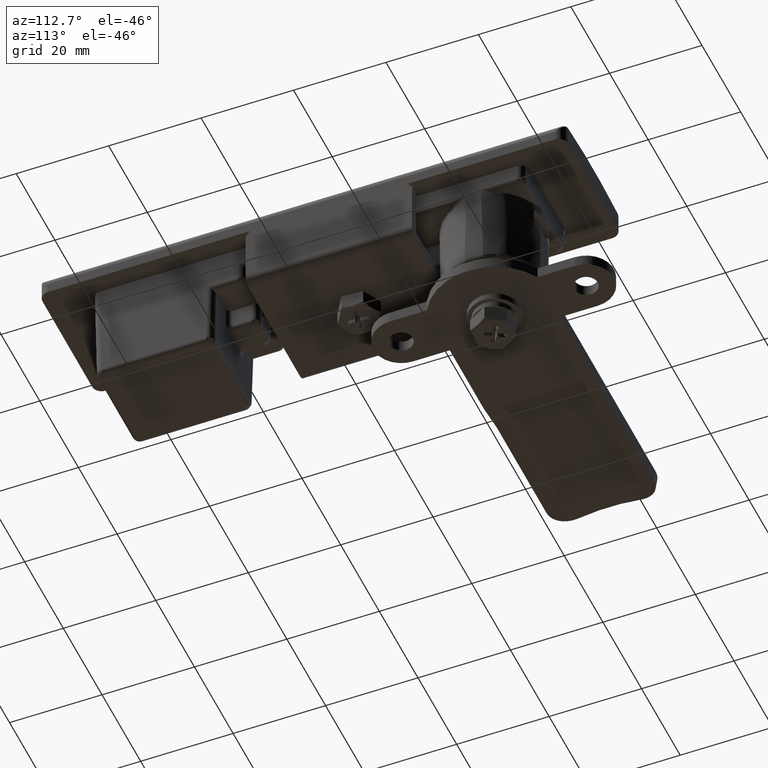
[diagram: clean part render]
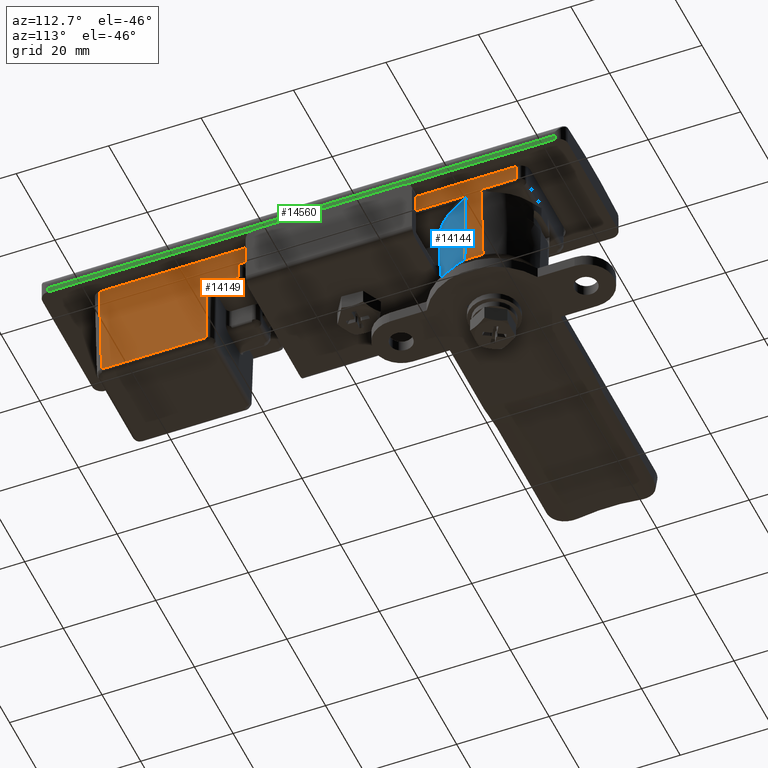
[diagram: same view with three faces highlighted in distinct colors, each labeled with its STEP entity id]
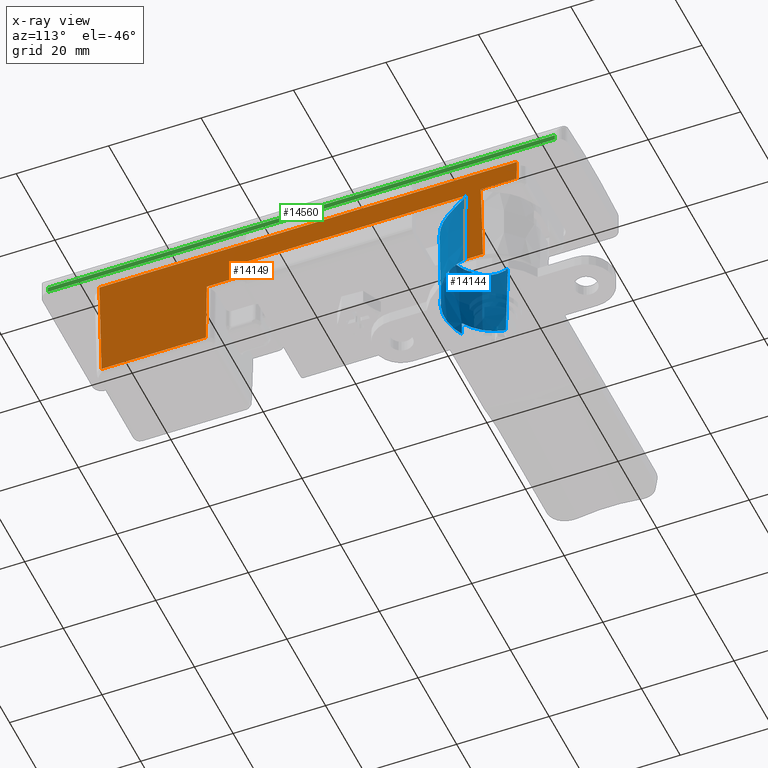
[diagram: x-ray of the same camera — body ghosted, the three highlighted faces saturated]
A machine part, auxiliary view with three faces highlighted in distinct colors.
The next image is the same camera in x-ray (body ghosted, the three faces saturated) — at least one of them is partly hidden behind the body in this view.
Their STEP definitions:

[orange] entity #14149 — the highlighted planar face has unit normal (0.9999, 0, -0.014).
#517=ELLIPSE('',#15081,464.240070481302,4.28746680562079);
#525=ELLIPSE('',#15097,0.154777954485398,0.109455126353893);
#526=ELLIPSE('',#15098,0.15475393743513,0.109421159849967);
#527=ELLIPSE('',#15099,464.240070481302,4.28746680562079);
#528=ELLIPSE('',#15100,0.585635017391936,0.343715317252574);
#688=LINE('',#28674,#1608);
#728=LINE('',#29131,#1648);
#738=LINE('',#29160,#1658);
#741=LINE('',#29369,#1661);
#742=LINE('',#29374,#1662);
#743=LINE('',#29380,#1663);
#744=LINE('',#29381,#1664);
#745=LINE('',#29383,#1665);
#746=LINE('',#29385,#1666);
#747=LINE('',#29386,#1667);
#1608=VECTOR('',#16631,90.3363288865236);
#1648=VECTOR('',#16773,23.2212809893595);
#1658=VECTOR('',#16795,3.70117226637697);
#1661=VECTOR('',#16802,49.109753568521);
#1662=VECTOR('',#16807,3.93851139306799);
#1663=VECTOR('',#16812,7.78124053749399);
#1664=VECTOR('',#16813,4.71767420189047);
#1665=VECTOR('',#16814,22.5943291384858);
#1666=VECTOR('',#16815,14.3045306511327);
#1667=VECTOR('',#16816,6.82249604853421);
#2523=PLANE('',#15096);
#2837=FACE_OUTER_BOUND('',#3717,.T.);
#3717=EDGE_LOOP('',(#9652,#9653,#9654,#9655,#9656,#9657,#9658,#9659,#9660,
#9661,#9662,#9663,#9664,#9665,#9666));
#5837=VERTEX_POINT('',#28671);
#5838=VERTEX_POINT('',#28673);
#5913=VERTEX_POINT('',#28918);
#5914=VERTEX_POINT('',#28920);
#5924=VERTEX_POINT('',#29092);
#5936=VERTEX_POINT('',#29158);
#5937=VERTEX_POINT('',#29159);
#5942=VERTEX_POINT('',#29217);
#5943=VERTEX_POINT('',#29371);
#5944=VERTEX_POINT('',#29373);
#5945=VERTEX_POINT('',#29375);
#5946=VERTEX_POINT('',#29377);
#5947=VERTEX_POINT('',#29379);
#5948=VERTEX_POINT('',#29382);
#5949=VERTEX_POINT('',#29384);
#7267=EDGE_CURVE('',#5838,#5837,#688,.T.);
#7344=EDGE_CURVE('',#5913,#5914,#517,.T.);
#7356=EDGE_CURVE('',#5837,#5924,#728,.T.);
#7370=EDGE_CURVE('',#5936,#5937,#738,.T.);
#7377=EDGE_CURVE('',#5937,#5942,#741,.T.);
#7378=EDGE_CURVE('',#5913,#5943,#525,.T.);
#7379=EDGE_CURVE('',#5943,#5944,#742,.T.);
#7380=EDGE_CURVE('',#5944,#5945,#526,.T.);
#7381=EDGE_CURVE('',#5946,#5945,#527,.T.);
#7382=EDGE_CURVE('',#5946,#5947,#743,.T.);
#7383=EDGE_CURVE('',#5947,#5838,#744,.T.);
#7384=EDGE_CURVE('',#5924,#5948,#745,.T.);
#7385=EDGE_CURVE('',#5948,#5949,#746,.T.);
#7386=EDGE_CURVE('',#5949,#5936,#747,.T.);
#7387=EDGE_CURVE('',#5942,#5914,#528,.T.);
#9652=ORIENTED_EDGE('',*,*,#7344,.F.);
#9653=ORIENTED_EDGE('',*,*,#7378,.T.);
#9654=ORIENTED_EDGE('',*,*,#7379,.T.);
#9655=ORIENTED_EDGE('',*,*,#7380,.T.);
#9656=ORIENTED_EDGE('',*,*,#7381,.F.);
#9657=ORIENTED_EDGE('',*,*,#7382,.T.);
#9658=ORIENTED_EDGE('',*,*,#7383,.T.);
#9659=ORIENTED_EDGE('',*,*,#7267,.T.);
#9660=ORIENTED_EDGE('',*,*,#7356,.T.);
#9661=ORIENTED_EDGE('',*,*,#7384,.T.);
#9662=ORIENTED_EDGE('',*,*,#7385,.T.);
#9663=ORIENTED_EDGE('',*,*,#7386,.T.);
#9664=ORIENTED_EDGE('',*,*,#7370,.T.);
#9665=ORIENTED_EDGE('',*,*,#7377,.T.);
#9666=ORIENTED_EDGE('',*,*,#7387,.T.);
#14149=ADVANCED_FACE('',(#2837),#2523,.T.);
#15081=AXIS2_PLACEMENT_3D('',#28921,#16758,#16759);
#15096=AXIS2_PLACEMENT_3D('',#29370,#16803,#16804);
#15097=AXIS2_PLACEMENT_3D('',#29372,#16805,#16806);
#15098=AXIS2_PLACEMENT_3D('',#29376,#16808,#16809);
#15099=AXIS2_PLACEMENT_3D('',#29378,#16810,#16811);
#15100=AXIS2_PLACEMENT_3D('',#29387,#16817,#16818);
#16631=DIRECTION('',(-1.,3.1255333109255E-18,-2.23835287222814E-16));
#16758=DIRECTION('center_axis',(0.,-0.999902524009304,-0.0139621803391464));
#16759=DIRECTION('ref_axis',(0.,0.0139621803391464,-0.999902524009304));
#16773=DIRECTION('',(0.0139608196270565,-0.0139608196270591,0.999805076517759));
#16795=DIRECTION('',(0.0209403793954215,0.0139591187990151,-0.999683271598125));
#16802=DIRECTION('',(1.,-5.16309677165247E-18,3.6975553733574E-16));
#16803=DIRECTION('center_axis',(0.,0.999902524009304,0.0139621803391464));
#16804=DIRECTION('ref_axis',(0.,0.0139621803391492,-0.999902524009304));
#16805=DIRECTION('center_axis',(1.48984843499968E-9,0.999902524008771,0.0139621803773251));
#16806=DIRECTION('ref_axis',(-0.0176406853990293,-0.0139600077101507,0.999746930179525));
#16807=DIRECTION('',(1.,0.,0.));
#16808=DIRECTION('center_axis',(-1.54396927252276E-9,0.99990252400876,0.0139621803781067));
#16809=DIRECTION('ref_axis',(0.017637351709531,-0.0139600085311287,0.999746988985956));
#16810=DIRECTION('center_axis',(0.,-0.999902524009304,-0.0139621803391464));
#16811=DIRECTION('ref_axis',(0.,0.0139621803391464,-0.999902524009304));
#16812=DIRECTION('',(1.,0.,0.));
#16813=DIRECTION('',(0.0139608196270585,0.0139608196270591,-0.999805076517759));
#16814=DIRECTION('',(1.,0.,0.));
#16815=DIRECTION('',(0.0209403793954211,0.0139591187990151,-0.999683271598125));
#16816=DIRECTION('',(1.,0.,0.));
#16817=DIRECTION('center_axis',(1.75792283152934E-13,-0.999902524009309,
-0.0139621803387829));
#16818=DIRECTION('ref_axis',(0.63353418551725,0.0108027441613151,-0.773639280607945));
#28671=CARTESIAN_POINT('',(69.1068355567384,-89.0569817707248,-3.55));
#28673=CARTESIAN_POINT('',(159.443164443262,-89.0569817707248,-3.54999999999998));
#28674=CARTESIAN_POINT('',(186.4,-89.0569817707248,-3.54999999999997));
#28918=CARTESIAN_POINT('',(148.030779024927,-89.3811114001757,19.6625661409394));
#28920=CARTESIAN_POINT('',(148.388174033898,-89.1324636764398,1.85532475195617));
#28921=CARTESIAN_POINT('Origin',(150.,-95.1387855322505,431.998802834796));
#29092=CARTESIAN_POINT('',(69.4310236721401,-89.3811698861266,19.666754616407));
#29131=CARTESIAN_POINT('',(69.1296965205083,-89.0798427344947,-1.91281047662134));
#29158=CARTESIAN_POINT('',(99.1473911580683,-89.1814912434032,5.36675461640699));
#29159=CARTESIAN_POINT('',(99.2248951095341,-89.1298261400413,1.66675461640701));
#29160=CARTESIAN_POINT('',(99.3723488627939,-89.0315316239656,-5.37261404471702));
#29217=CARTESIAN_POINT('',(148.334648678062,-89.1298245436953,1.6667546383668));
#29369=CARTESIAN_POINT('',(186.4,-89.1298261400413,1.66675461640702));
#29370=CARTESIAN_POINT('Origin',(186.4,-89.0569817707248,-3.54999999999999));
#29371=CARTESIAN_POINT('',(148.030744303466,-89.3811698861266,19.666754616407));
#29372=CARTESIAN_POINT('Origin',(148.140216272545,-89.3811390251963,19.6645444970428));
#29373=CARTESIAN_POINT('',(151.969255696534,-89.3811698861266,19.666754616407));
#29374=CARTESIAN_POINT('',(186.4,-89.3811698861266,19.666754616407));
#29375=CARTESIAN_POINT('',(151.969220975073,-89.3811114001757,19.6625661409394));
#29376=CARTESIAN_POINT('Origin',(151.85981769511,-89.3811390219307,19.6645442627598));
#29377=CARTESIAN_POINT('',(151.596061307176,-89.1228443693167,1.16675461640699));
#29378=CARTESIAN_POINT('Origin',(150.,-95.1387855322505,431.998802834796));
#29379=CARTESIAN_POINT('',(159.37730184467,-89.1228443693167,1.16675461640698));
#29380=CARTESIAN_POINT('',(186.4,-89.1228443693167,1.16675461640698));
#29381=CARTESIAN_POINT('',(159.448418451404,-89.0517277625826,-3.92626616151436));
#29382=CARTESIAN_POINT('',(92.0253528106259,-89.3811698861266,19.666754616407));
#29383=CARTESIAN_POINT('',(186.4,-89.3811698861266,19.666754616407));
#29384=CARTESIAN_POINT('',(92.3248951095341,-89.1814912434032,5.36675461640699));
#29385=CARTESIAN_POINT('',(92.5528444752921,-89.0295373453056,-5.51543445078625));
#29386=CARTESIAN_POINT('',(186.4,-89.1814912434032,5.36675461640699));
#29387=CARTESIAN_POINT('Origin',(147.931794149462,-89.1356963255861,2.08714836581689));

[blue] entity #14144 — the highlighted conical surface has half-angle 0.6 deg.
#390=CONICAL_SURFACE('',#15076,10.7999364046344,0.0104719755119659);
#516=ELLIPSE('',#15077,464.240070481226,4.28746680562009);
#517=ELLIPSE('',#15081,464.240070481302,4.28746680562079);
#518=ELLIPSE('',#15083,650.267104092456,7.26775512542726);
#519=ELLIPSE('',#15085,655.734211315511,7.37169712600853);
#725=LINE('',#28913,#1645);
#726=LINE('',#28917,#1646);
#1645=VECTOR('',#16752,3.09074890876522);
#1646=VECTOR('',#16755,3.09074882597285);
#2832=FACE_OUTER_BOUND('',#3711,.T.);
#3711=EDGE_LOOP('',(#9607,#9608,#9609,#9610,#9611,#9612,#9613,#9614,#9615,
#9616,#9617,#9618,#9619,#9620,#9621,#9622));
#4713=B_SPLINE_CURVE_WITH_KNOTS('',3,(#28923,#28924,#28925,#28926,#28927,
#28928,#28929,#28930,#28931,#28932,#28933,#28934,#28935,#28936,#28937,#28938,
#28939,#28940,#28941,#28942,#28943,#28944,#28945,#28946,#28947,#28948,#28949,
#28950,#28951,#28952,#28953,#28954,#28955,#28956,#28957,#28958,#28959,#28960,
#28961,#28962,#28963,#28964,#28965,#28966,#28967,#28968,#28969,#28970,#28971,
#28972,#28973,#28974,#28975,#28976,#28977,#28978,#28979,#28980,#28981,#28982,
#28983,#28984,#28985,#28986,#28987,#28988),.UNSPECIFIED.,.F.,.F.,(4,2,2,
2,2,2,2,2,2,2,2,2,2,2,2,2,2,2,2,2,2,2,2,2,2,2,2,2,2,2,2,2,4),(2.95379742203875E-14,
0.0169544693864773,0.0329217426797109,0.0473913676340086,0.072301814469264,
0.0950801212772199,0.116773590726306,0.137142541527361,0.14703315497503,
0.180415848255328,0.211433726895174,0.239914399162714,0.249999999999997,
0.276128192334897,0.290448670101285,0.335921679475225,0.364947674959515,
0.391226997077889,0.433078876886877,0.437500000000001,0.450009627924577,
0.462349340696292,0.47508343459444,0.486901769339524,0.500000000000007,
0.557656108815905,0.618968377705152,0.682873662381024,0.74967621546989,
0.82167223130858,0.897282459425005,0.979088838413367,1.),.UNSPECIFIED.);
#4714=B_SPLINE_CURVE_WITH_KNOTS('',3,(#28994,#28995,#28996,#28997,#28998,
#28999,#29000,#29001,#29002,#29003),.UNSPECIFIED.,.F.,.F.,(4,2,2,2,4),(-0.0047308052367742,
0.,0.0484607747779677,0.0759424919550525,0.101605138792956),
 .UNSPECIFIED.);
#4715=B_SPLINE_CURVE_WITH_KNOTS('',3,(#29007,#29008,#29009,#29010,#29011,
#29012,#29013,#29014,#29015,#29016),.UNSPECIFIED.,.F.,.F.,(4,2,2,2,4),(0.,
0.027517666806284,0.056985895133302,0.108949648578472,0.114022419289789),
 .UNSPECIFIED.);
#4716=B_SPLINE_CURVE_WITH_KNOTS('',3,(#29021,#29022,#29023,#29024,#29025,
#29026,#29027,#29028,#29029,#29030,#29031,#29032,#29033,#29034,#29035,#29036,
#29037,#29038,#29039,#29040,#29041,#29042,#29043,#29044,#29045,#29046,#29047,
#29048,#29049,#29050,#29051,#29052,#29053,#29054,#29055,#29056,#29057,#29058,
#29059,#29060,#29061,#29062,#29063,#29064,#29065,#29066,#29067,#29068,#29069,
#29070,#29071,#29072,#29073,#29074,#29075,#29076,#29077,#29078,#29079,#29080,
#29081,#29082,#29083,#29084,#29085,#29086,#29087,#29088),.UNSPECIFIED.,
 .F.,.F.,(4,2,2,2,2,2,2,2,2,2,2,2,2,2,2,2,2,2,2,2,2,2,2,2,2,2,2,2,2,2,2,
2,2,4),(0.,0.0918029845604541,0.170901492280224,0.245935304308858,0.249999999999993,
0.314653977560984,0.37499999999999,0.432467982034807,0.437499999999994,
0.450736958105948,0.464375225046676,0.47760599796234,0.489695856585386,
0.499999999999998,0.510894643591763,0.550401529673819,0.59257662468468,
0.636354183158157,0.682552939686665,0.710646052959975,0.736894995308005,
0.764239713566658,0.793526935464773,0.825369048260799,0.853413240829023,
0.873320388866884,0.894501987681184,0.916554560214781,0.940251588849618,
0.952298749463537,0.958933386126638,0.974983313091459,0.993115124816357,
0.999999999999839),.UNSPECIFIED.);
#5123=CIRCLE('',#15078,10.7999364046344);
#5124=CIRCLE('',#15079,10.7675707916833);
#5125=CIRCLE('',#15080,10.7999364046344);
#5126=CIRCLE('',#15082,10.9677134663423);
#5127=CIRCLE('',#15084,10.9131694716459);
#5128=CIRCLE('',#15086,10.9677134663423);
#5907=VERTEX_POINT('',#28907);
#5908=VERTEX_POINT('',#28908);
#5909=VERTEX_POINT('',#28910);
#5910=VERTEX_POINT('',#28912);
#5911=VERTEX_POINT('',#28914);
#5912=VERTEX_POINT('',#28916);
#5913=VERTEX_POINT('',#28918);
#5914=VERTEX_POINT('',#28920);
#5915=VERTEX_POINT('',#28922);
#5916=VERTEX_POINT('',#28989);
#5917=VERTEX_POINT('',#28991);
#5918=VERTEX_POINT('',#28993);
#5919=VERTEX_POINT('',#29004);
#5920=VERTEX_POINT('',#29006);
#5921=VERTEX_POINT('',#29017);
#5922=VERTEX_POINT('',#29019);
#7338=EDGE_CURVE('',#5907,#5908,#516,.T.);
#7339=EDGE_CURVE('',#5907,#5909,#5123,.T.);
#7340=EDGE_CURVE('',#5910,#5909,#725,.T.);
#7341=EDGE_CURVE('',#5910,#5911,#5124,.T.);
#7342=EDGE_CURVE('',#5911,#5912,#726,.T.);
#7343=EDGE_CURVE('',#5912,#5913,#5125,.T.);
#7344=EDGE_CURVE('',#5913,#5914,#517,.T.);
#7345=EDGE_CURVE('',#5914,#5915,#4713,.T.);
#7346=EDGE_CURVE('',#5915,#5916,#5126,.T.);
#7347=EDGE_CURVE('',#5916,#5917,#518,.T.);
#7348=EDGE_CURVE('',#5917,#5918,#4714,.T.);
#7349=EDGE_CURVE('',#5919,#5918,#5127,.T.);
#7350=EDGE_CURVE('',#5919,#5920,#4715,.T.);
#7351=EDGE_CURVE('',#5920,#5921,#519,.T.);
#7352=EDGE_CURVE('',#5921,#5922,#5128,.T.);
#7353=EDGE_CURVE('',#5922,#5908,#4716,.T.);
#9607=ORIENTED_EDGE('',*,*,#7338,.F.);
#9608=ORIENTED_EDGE('',*,*,#7339,.T.);
#9609=ORIENTED_EDGE('',*,*,#7340,.F.);
#9610=ORIENTED_EDGE('',*,*,#7341,.T.);
#9611=ORIENTED_EDGE('',*,*,#7342,.T.);
#9612=ORIENTED_EDGE('',*,*,#7343,.T.);
#9613=ORIENTED_EDGE('',*,*,#7344,.T.);
#9614=ORIENTED_EDGE('',*,*,#7345,.T.);
#9615=ORIENTED_EDGE('',*,*,#7346,.T.);
#9616=ORIENTED_EDGE('',*,*,#7347,.T.);
#9617=ORIENTED_EDGE('',*,*,#7348,.T.);
#9618=ORIENTED_EDGE('',*,*,#7349,.F.);
#9619=ORIENTED_EDGE('',*,*,#7350,.T.);
#9620=ORIENTED_EDGE('',*,*,#7351,.T.);
#9621=ORIENTED_EDGE('',*,*,#7352,.T.);
#9622=ORIENTED_EDGE('',*,*,#7353,.T.);
#14144=ADVANCED_FACE('',(#2832),#390,.T.);
#15076=AXIS2_PLACEMENT_3D('',#28906,#16746,#16747);
#15077=AXIS2_PLACEMENT_3D('',#28909,#16748,#16749);
#15078=AXIS2_PLACEMENT_3D('',#28911,#16750,#16751);
#15079=AXIS2_PLACEMENT_3D('',#28915,#16753,#16754);
#15080=AXIS2_PLACEMENT_3D('',#28919,#16756,#16757);
#15081=AXIS2_PLACEMENT_3D('',#28921,#16758,#16759);
#15082=AXIS2_PLACEMENT_3D('',#28990,#16760,#16761);
#15083=AXIS2_PLACEMENT_3D('',#28992,#16762,#16763);
#15084=AXIS2_PLACEMENT_3D('',#29005,#16764,#16765);
#15085=AXIS2_PLACEMENT_3D('',#29018,#16766,#16767);
#15086=AXIS2_PLACEMENT_3D('',#29020,#16768,#16769);
#16746=DIRECTION('center_axis',(0.,0.,-1.));
#16747=DIRECTION('ref_axis',(-1.,-6.78380282766567E-15,0.));
#16748=DIRECTION('center_axis',(0.,-0.999902524009304,0.0139621803391458));
#16749=DIRECTION('ref_axis',(0.,-0.0139621803391458,-0.999902524009304));
#16750=DIRECTION('center_axis',(0.,0.,-1.));
#16751=DIRECTION('ref_axis',(1.,0.,0.));
#16752=DIRECTION('',(-0.00821126718839317,-0.00670819689672159,-0.999943786012772));
#16753=DIRECTION('center_axis',(0.,0.,-1.));
#16754=DIRECTION('ref_axis',(-1.,0.,0.));
#16755=DIRECTION('',(-0.00821126718839891,0.00670819689683078,-0.999943786012771));
#16756=DIRECTION('center_axis',(0.,0.,-1.));
#16757=DIRECTION('ref_axis',(1.,0.,0.));
#16758=DIRECTION('center_axis',(0.,-0.999902524009304,-0.0139621803391464));
#16759=DIRECTION('ref_axis',(0.,0.0139621803391464,-0.999902524009304));
#16760=DIRECTION('center_axis',(0.,0.,1.));
#16761=DIRECTION('ref_axis',(-1.,0.,0.));
#16762=DIRECTION('center_axis',(-0.0916197734645488,0.995648672652722,0.0170158089780552));
#16763=DIRECTION('ref_axis',(0.00355311674554424,-0.0167607069049695,0.999853216259986));
#16764=DIRECTION('center_axis',(0.,0.,-1.));
#16765=DIRECTION('ref_axis',(-1.,0.,0.));
#16766=DIRECTION('center_axis',(-0.0916198770910891,-0.995648663106424,
0.0170158095958866));
#16767=DIRECTION('ref_axis',(-0.00349998835714254,-0.0167655980069787,-0.999853321645214));
#16768=DIRECTION('center_axis',(0.,0.,1.));
#16769=DIRECTION('ref_axis',(-1.,0.,0.));
#28906=CARTESIAN_POINT('Origin',(150.,-100.,19.6625661409395));
#28907=CARTESIAN_POINT('',(148.030779024927,-110.618888599825,19.6625661409395));
#28908=CARTESIAN_POINT('',(148.388174690729,-110.867527466459,1.85532464323361));
#28909=CARTESIAN_POINT('Origin',(150.,-104.861214467751,431.998802834719));
#28910=CARTESIAN_POINT('',(140.66921026733,-105.438289184752,19.6625663701614));
#28911=CARTESIAN_POINT('Origin',(150.,-100.,19.6625661409397));
#28912=CARTESIAN_POINT('',(140.694589121241,-105.417555641744,22.7531415352402));
#28913=CARTESIAN_POINT('',(140.694589121241,-105.417555641744,22.7531415352444));
#28914=CARTESIAN_POINT('',(140.694589121241,-94.5824443582566,22.7531415352402));
#28915=CARTESIAN_POINT('Origin',(150.,-100.,22.7531415352349));
#28916=CARTESIAN_POINT('',(140.66921016061,-94.5617110000682,19.6625664525949));
#28917=CARTESIAN_POINT('',(140.694589121241,-94.5824443582566,22.7531415352444));
#28918=CARTESIAN_POINT('',(148.030779024927,-89.3811114001757,19.6625661409394));
#28919=CARTESIAN_POINT('Origin',(150.,-100.,19.6625661409397));
#28920=CARTESIAN_POINT('',(148.388174033898,-89.1324636764398,1.85532475195617));
#28921=CARTESIAN_POINT('Origin',(150.,-95.1387855322505,431.998802834796));
#28922=CARTESIAN_POINT('',(143.750348563005,-90.9870872856859,3.64162257270702));
#28923=CARTESIAN_POINT('Ctrl Pts',(148.388174690728,-89.1324725335413,1.85532464323337));
#28924=CARTESIAN_POINT('Ctrl Pts',(148.380136825916,-89.1338055051391,1.86852623694646));
#28925=CARTESIAN_POINT('Ctrl Pts',(148.371277239575,-89.1352687509672,1.88177692968449));
#28926=CARTESIAN_POINT('Ctrl Pts',(148.352610522289,-89.138353104825,1.90748764074911));
#28927=CARTESIAN_POINT('Ctrl Pts',(148.342888447379,-89.1399600811621,1.91994874498007));
#28928=CARTESIAN_POINT('Ctrl Pts',(148.323273895547,-89.1432167983206,1.94357803953029));
#28929=CARTESIAN_POINT('Ctrl Pts',(148.31348311685,-89.1448483698941,1.95475781176576));
#28930=CARTESIAN_POINT('Ctrl Pts',(148.285871727522,-89.1494843154384,1.98490997461892));
#28931=CARTESIAN_POINT('Ctrl Pts',(148.267096565305,-89.1526688106536,2.00403399927173));
#28932=CARTESIAN_POINT('Ctrl Pts',(148.228562395655,-89.1592944252076,2.04069043472831));
#28933=CARTESIAN_POINT('Ctrl Pts',(148.209024956567,-89.1626902881219,2.05821876461086));
#28934=CARTESIAN_POINT('Ctrl Pts',(148.168671102003,-89.169804682634,2.09248915797361));
#28935=CARTESIAN_POINT('Ctrl Pts',(148.147959592972,-89.1735001837055,2.1092286130544));
#28936=CARTESIAN_POINT('Ctrl Pts',(148.105880225336,-89.1811260089394,2.14179275486395));
#28937=CARTESIAN_POINT('Ctrl Pts',(148.084629500287,-89.1850282436519,2.15761074076627));
#28938=CARTESIAN_POINT('Ctrl Pts',(148.051859540497,-89.1911479722402,2.18126510474036));
#28939=CARTESIAN_POINT('Ctrl Pts',(148.040958418049,-89.1931994338812,2.18902190155689));
#28940=CARTESIAN_POINT('Ctrl Pts',(147.992480942217,-89.2024016552203,2.22311000286087));
#28941=CARTESIAN_POINT('Ctrl Pts',(147.952929899085,-89.2101046041183,2.24977499396975));
#28942=CARTESIAN_POINT('Ctrl Pts',(147.872277492116,-89.226301669897,2.30182464910068));
#28943=CARTESIAN_POINT('Ctrl Pts',(147.831484058722,-89.2347011751152,2.32716565221967));
#28944=CARTESIAN_POINT('Ctrl Pts',(147.749397714391,-89.2521095739589,2.37627547150642));
#28945=CARTESIAN_POINT('Ctrl Pts',(147.708418444116,-89.2610124976461,2.40000305712426));
#28946=CARTESIAN_POINT('Ctrl Pts',(147.650630002967,-89.2739268340649,2.43246383750853));
#28947=CARTESIAN_POINT('Ctrl Pts',(147.635305076743,-89.2773836654236,2.44098373982381));
#28948=CARTESIAN_POINT('Ctrl Pts',(147.579518017027,-89.2900922381666,2.471695137995));
#28949=CARTESIAN_POINT('Ctrl Pts',(147.537870797825,-89.2998090481852,2.49405899715322));
#28950=CARTESIAN_POINT('Ctrl Pts',(147.471313993749,-89.3157725550752,2.52908375542555));
#28951=CARTESIAN_POINT('Ctrl Pts',(147.447346445466,-89.321603038104,2.54156290399656));
#28952=CARTESIAN_POINT('Ctrl Pts',(147.345640230654,-89.3467271256512,2.5940573510049));
#28953=CARTESIAN_POINT('Ctrl Pts',(147.264330956728,-89.367689350901,2.63475559197689));
#28954=CARTESIAN_POINT('Ctrl Pts',(147.124474702376,-89.4056144865629,2.70232828806445));
#28955=CARTESIAN_POINT('Ctrl Pts',(147.068331893903,-89.4212825616825,2.72887856559759));
#28956=CARTESIAN_POINT('Ctrl Pts',(146.958171107367,-89.4530190810512,2.77978147381072));
#28957=CARTESIAN_POINT('Ctrl Pts',(146.904449425929,-89.4689112145358,2.80410649361887));
#28958=CARTESIAN_POINT('Ctrl Pts',(146.761684389666,-89.5123832264771,2.86737333350743));
#28959=CARTESIAN_POINT('Ctrl Pts',(146.67056310975,-89.5413099205307,2.90643782060134));
#28960=CARTESIAN_POINT('Ctrl Pts',(146.566106575427,-89.5760831818867,2.94965472899574));
#28961=CARTESIAN_POINT('Ctrl Pts',(146.556088927354,-89.5794337634673,2.95378415455221));
#28962=CARTESIAN_POINT('Ctrl Pts',(146.517583279878,-89.5923742604397,2.96959827313968));
#28963=CARTESIAN_POINT('Ctrl Pts',(146.487161341616,-89.6027290984615,2.98196776328231));
#28964=CARTESIAN_POINT('Ctrl Pts',(146.424818238223,-89.6242780538605,3.0070166011005));
#28965=CARTESIAN_POINT('Ctrl Pts',(146.392923135616,-89.6354592014,3.0196893641886));
#28966=CARTESIAN_POINT('Ctrl Pts',(146.328176469924,-89.6584967867193,3.04511986604732));
#28967=CARTESIAN_POINT('Ctrl Pts',(146.295327023361,-89.67036363019,3.05786743277429));
#28968=CARTESIAN_POINT('Ctrl Pts',(146.234101110622,-89.6927958449807,3.08136666212225));
#28969=CARTESIAN_POINT('Ctrl Pts',(146.205572874866,-89.703392685886,3.09219673037661));
#28970=CARTESIAN_POINT('Ctrl Pts',(146.149199033434,-89.7245709168582,3.11340675333529));
#28971=CARTESIAN_POINT('Ctrl Pts',(146.121751464119,-89.7350338454053,3.12361687703036));
#28972=CARTESIAN_POINT('Ctrl Pts',(145.991537112454,-89.7851504212018,3.1716462661213));
#28973=CARTESIAN_POINT('Ctrl Pts',(145.887218951221,-89.8272181633667,3.20867006437138));
#28974=CARTESIAN_POINT('Ctrl Pts',(145.675757326549,-89.9161867219491,3.28049404019822));
#28975=CARTESIAN_POINT('Ctrl Pts',(145.568854147218,-89.9632247030841,3.31500451094807));
#28976=CARTESIAN_POINT('Ctrl Pts',(145.354824820332,-90.0613222361537,3.38021559552603));
#28977=CARTESIAN_POINT('Ctrl Pts',(145.247880287232,-90.1124676883973,3.41069373123431));
#28978=CARTESIAN_POINT('Ctrl Pts',(145.033826260856,-90.2189000979801,3.46721717422847));
#28979=CARTESIAN_POINT('Ctrl Pts',(144.926928921813,-90.2742696586738,3.49299926176315));
#28980=CARTESIAN_POINT('Ctrl Pts',(144.70997531464,-90.3909476679878,3.54010527566464));
#28981=CARTESIAN_POINT('Ctrl Pts',(144.600319432986,-90.4523829938457,3.56092709370989));
#28982=CARTESIAN_POINT('Ctrl Pts',(144.381291371037,-90.5798028530214,3.59628470811943));
#28983=CARTESIAN_POINT('Ctrl Pts',(144.272209446942,-90.6458609444439,3.61045310732489));
#28984=CARTESIAN_POINT('Ctrl Pts',(144.051398065852,-90.7846331257767,3.63190607370129));
#28985=CARTESIAN_POINT('Ctrl Pts',(143.940183838529,-90.8574488816886,3.63853212631537));
#28986=CARTESIAN_POINT('Ctrl Pts',(143.804805905558,-90.9495082413561,3.641338141338));
#28987=CARTESIAN_POINT('Ctrl Pts',(143.777467589499,-90.9682826585509,3.64162257185235));
#28988=CARTESIAN_POINT('Ctrl Pts',(143.750348563005,-90.9870872856859,3.64162257270703));
#28989=CARTESIAN_POINT('',(139.241252073275,-97.8692532461643,3.64162257270702));
#28990=CARTESIAN_POINT('Origin',(150.,-100.,3.64162257270703));
#28991=CARTESIAN_POINT('',(139.276483769319,-97.9465676904609,8.35523589205492));
#28992=CARTESIAN_POINT('Origin',(145.317289718692,-93.6586523408747,-210.018157840223));
#28993=CARTESIAN_POINT('',(139.140558246043,-98.9184309305532,8.85000000000001));
#28994=CARTESIAN_POINT('Ctrl Pts',(139.276494630965,-97.9465121056663,8.35532718441254));
#28995=CARTESIAN_POINT('Ctrl Pts',(139.274320148584,-97.9584264790259,8.36537164129411));
#28996=CARTESIAN_POINT('Ctrl Pts',(139.272956734749,-97.9659647407988,8.37174618248186));
#28997=CARTESIAN_POINT('Ctrl Pts',(139.248818897143,-98.10043139425,8.48476494866909));
#28998=CARTESIAN_POINT('Ctrl Pts',(139.226895044095,-98.2341067676498,8.59500988218381));
#28999=CARTESIAN_POINT('Ctrl Pts',(139.193415680842,-98.4673602106853,8.73315069586222));
#29000=CARTESIAN_POINT('Ctrl Pts',(139.181554786852,-98.5562907691235,8.77581819366058));
#29001=CARTESIAN_POINT('Ctrl Pts',(139.159670762576,-98.7366717322285,8.83350743772718));
#29002=CARTESIAN_POINT('Ctrl Pts',(139.149648835984,-98.8271568254777,8.85000000000001));
#29003=CARTESIAN_POINT('Ctrl Pts',(139.140558210519,-98.9184307984567,8.85000000000001));
#29004=CARTESIAN_POINT('',(139.140558246043,-101.081569069451,8.85000000000001));
#29005=CARTESIAN_POINT('Origin',(150.,-100.,8.85000000000001));
#29006=CARTESIAN_POINT('',(139.27648376932,-102.05343230954,8.35523589205502));
#29007=CARTESIAN_POINT('Ctrl Pts',(139.140558210519,-101.081569201547,8.85000000000001));
#29008=CARTESIAN_POINT('Ctrl Pts',(139.149648835992,-101.172843174595,8.85000000000002));
#29009=CARTESIAN_POINT('Ctrl Pts',(139.159670762592,-101.263328267912,8.83350743770388));
#29010=CARTESIAN_POINT('Ctrl Pts',(139.181554786885,-101.443709231137,8.775818193565));
#29011=CARTESIAN_POINT('Ctrl Pts',(139.193415680884,-101.532639789628,8.73315069571769));
#29012=CARTESIAN_POINT('Ctrl Pts',(139.226895044157,-101.76589323275,8.59500988191437));
#29013=CARTESIAN_POINT('Ctrl Pts',(139.24881889721,-101.899568606126,8.48476494836098));
#29014=CARTESIAN_POINT('Ctrl Pts',(139.272956734759,-102.034035259257,8.37174618243795));
#29015=CARTESIAN_POINT('Ctrl Pts',(139.274320148574,-102.041573520915,8.36537164134527));
#29016=CARTESIAN_POINT('Ctrl Pts',(139.276494630965,-102.053487894335,8.3553271844123));
#29017=CARTESIAN_POINT('',(139.241252073275,-102.130746753836,3.64162257270702));
#29018=CARTESIAN_POINT('Origin',(145.408974509163,-106.406163871158,-213.317044294415));
#29019=CARTESIAN_POINT('',(143.750348563008,-109.012912714317,3.64162257270702));
#29020=CARTESIAN_POINT('Origin',(150.,-100.,3.64162257270703));
#29021=CARTESIAN_POINT('Ctrl Pts',(143.750348563008,-109.012912714317,3.64162257270703));
#29022=CARTESIAN_POINT('Ctrl Pts',(143.869385709599,-109.095454362978,3.64162256895528));
#29023=CARTESIAN_POINT('Ctrl Pts',(143.992784900021,-109.177513340984,3.63593025373912));
#29024=CARTESIAN_POINT('Ctrl Pts',(144.230815036363,-109.328724003499,3.61465400378815));
#29025=CARTESIAN_POINT('Ctrl Pts',(144.344297154658,-109.398090841609,3.60054791694577));
#29026=CARTESIAN_POINT('Ctrl Pts',(144.571997724878,-109.531576407947,3.56476365196278));
#29027=CARTESIAN_POINT('Ctrl Pts',(144.685879356205,-109.595782089398,3.54351167703456));
#29028=CARTESIAN_POINT('Ctrl Pts',(144.809158099415,-109.662396797206,3.51710154063496));
#29029=CARTESIAN_POINT('Ctrl Pts',(144.815502098148,-109.665816994306,3.51573323645756));
#29030=CARTESIAN_POINT('Ctrl Pts',(144.922907032984,-109.723588494504,3.49241206289856));
#29031=CARTESIAN_POINT('Ctrl Pts',(145.026234460515,-109.777180696961,3.46764093049631));
#29032=CARTESIAN_POINT('Ctrl Pts',(145.23047033558,-109.879016526855,3.41424889530001));
#29033=CARTESIAN_POINT('Ctrl Pts',(145.331081233887,-109.927378406115,3.38599423318013));
#29034=CARTESIAN_POINT('Ctrl Pts',(145.53144840687,-110.01993608017,3.32602135030731));
#29035=CARTESIAN_POINT('Ctrl Pts',(145.631020749652,-110.064222680103,3.29452663144344));
#29036=CARTESIAN_POINT('Ctrl Pts',(145.741323054858,-110.111297355363,3.2578350428742));
#29037=CARTESIAN_POINT('Ctrl Pts',(145.75021791052,-110.11507974752,3.25486375008386));
#29038=CARTESIAN_POINT('Ctrl Pts',(145.782562527787,-110.128783578686,3.24401405199586));
#29039=CARTESIAN_POINT('Ctrl Pts',(145.804233407984,-110.137872981904,3.23666389763267));
#29040=CARTESIAN_POINT('Ctrl Pts',(145.847048252061,-110.155685095066,3.22201159316486));
#29041=CARTESIAN_POINT('Ctrl Pts',(145.868156422172,-110.164388201035,3.2147173090666));
#29042=CARTESIAN_POINT('Ctrl Pts',(145.911074884485,-110.181924297064,3.19973925989256));
#29043=CARTESIAN_POINT('Ctrl Pts',(145.932845429709,-110.190745815693,3.19207358577417));
#29044=CARTESIAN_POINT('Ctrl Pts',(145.977994324246,-110.208849328808,3.1760038371888));
#29045=CARTESIAN_POINT('Ctrl Pts',(146.00107221668,-110.218026217779,3.16772040384735));
#29046=CARTESIAN_POINT('Ctrl Pts',(146.048310325538,-110.236589361262,3.15057603883643));
#29047=CARTESIAN_POINT('Ctrl Pts',(146.071807257674,-110.245744346276,3.14198088020595));
#29048=CARTESIAN_POINT('Ctrl Pts',(146.124921441247,-110.26618739887,3.12234865146598));
#29049=CARTESIAN_POINT('Ctrl Pts',(146.151980474726,-110.27647515288,3.11224989046736));
#29050=CARTESIAN_POINT('Ctrl Pts',(146.276058821563,-110.32308910471,3.06553111840523));
#29051=CARTESIAN_POINT('Ctrl Pts',(146.370289395469,-110.356929251775,3.02884254600294));
#29052=CARTESIAN_POINT('Ctrl Pts',(146.558839668524,-110.421986714865,2.95300684165996));
#29053=CARTESIAN_POINT('Ctrl Pts',(146.65273564026,-110.452872735556,2.91386141918303));
#29054=CARTESIAN_POINT('Ctrl Pts',(146.837082523639,-110.511023687499,2.8343710924821));
#29055=CARTESIAN_POINT('Ctrl Pts',(146.927267221336,-110.538106446336,2.79403779831359));
#29056=CARTESIAN_POINT('Ctrl Pts',(147.105098496768,-110.589279287845,2.71181227866504));
#29057=CARTESIAN_POINT('Ctrl Pts',(147.192329056086,-110.613121132428,2.6699579462654));
#29058=CARTESIAN_POINT('Ctrl Pts',(147.326171765977,-110.648129736671,2.60359969676392));
#29059=CARTESIAN_POINT('Ctrl Pts',(147.375305157191,-110.660601082364,2.57872481953731));
#29060=CARTESIAN_POINT('Ctrl Pts',(147.467527155795,-110.683382329665,2.53113058674217));
#29061=CARTESIAN_POINT('Ctrl Pts',(147.510804951859,-110.693772206148,2.50842878316459));
#29062=CARTESIAN_POINT('Ctrl Pts',(147.596430336051,-110.71382643459,2.46250326825887));
#29063=CARTESIAN_POINT('Ctrl Pts',(147.63866385779,-110.723442425657,2.43929759477459));
#29064=CARTESIAN_POINT('Ctrl Pts',(147.723024920458,-110.742187310147,2.39161179681255));
#29065=CARTESIAN_POINT('Ctrl Pts',(147.764931898092,-110.751233127796,2.36715840659145));
#29066=CARTESIAN_POINT('Ctrl Pts',(147.848775540252,-110.768887564433,2.31652883750056));
#29067=CARTESIAN_POINT('Ctrl Pts',(147.890395989064,-110.777389287722,2.2903886813441));
#29068=CARTESIAN_POINT('Ctrl Pts',(147.964850264121,-110.792212231207,2.24173082400851));
#29069=CARTESIAN_POINT('Ctrl Pts',(147.998140937293,-110.798672538758,2.21915405182514));
#29070=CARTESIAN_POINT('Ctrl Pts',(148.052431393534,-110.808977981167,2.18099269444158));
#29071=CARTESIAN_POINT('Ctrl Pts',(148.07423365424,-110.813042943547,2.16528645568355));
#29072=CARTESIAN_POINT('Ctrl Pts',(148.117524674749,-110.82100173174,2.13302010404263));
#29073=CARTESIAN_POINT('Ctrl Pts',(148.138904077945,-110.824867957711,2.11646978218262));
#29074=CARTESIAN_POINT('Ctrl Pts',(148.180498341227,-110.832294726198,2.08278195090109));
#29075=CARTESIAN_POINT('Ctrl Pts',(148.200629480265,-110.835836200503,2.06564856915713));
#29076=CARTESIAN_POINT('Ctrl Pts',(148.240087484839,-110.842699420703,2.03019717222061));
#29077=CARTESIAN_POINT('Ctrl Pts',(148.25924262831,-110.845985124367,2.0118862989028));
#29078=CARTESIAN_POINT('Ctrl Pts',(148.286223608693,-110.850565321252,1.98439356742125));
#29079=CARTESIAN_POINT('Ctrl Pts',(148.294990286613,-110.852044661329,1.97514980962237));
#29080=CARTESIAN_POINT('Ctrl Pts',(148.308087170652,-110.854243357845,1.96086134634503));
#29081=CARTESIAN_POINT('Ctrl Pts',(148.31265965088,-110.855008372509,1.95577099315085));
#29082=CARTESIAN_POINT('Ctrl Pts',(148.327984152113,-110.85756576397,1.93833055335579));
#29083=CARTESIAN_POINT('Ctrl Pts',(148.338241055779,-110.859266798194,1.92594420207466));
#29084=CARTESIAN_POINT('Ctrl Pts',(148.358732683225,-110.862658449568,1.89951797047915));
#29085=CARTESIAN_POINT('Ctrl Pts',(148.368793460864,-110.864319299398,1.88547255295128));
#29086=CARTESIAN_POINT('Ctrl Pts',(148.381526001349,-110.866425729068,1.86604075570548));
#29087=CARTESIAN_POINT('Ctrl Pts',(148.384910447076,-110.866986125377,1.86068687041587));
#29088=CARTESIAN_POINT('Ctrl Pts',(148.388174690729,-110.867527466459,1.85532464323361));

[green] entity #14560 — the highlighted planar face has unit normal (1, -0, 0).
#1115=LINE('',#43775,#2035);
#1116=LINE('',#43778,#2036);
#1117=LINE('',#43780,#2037);
#1118=LINE('',#43781,#2038);
#2035=VECTOR('',#18646,1.2);
#2036=VECTOR('',#18649,109.7);
#2037=VECTOR('',#18650,109.7);
#2038=VECTOR('',#18651,1.2);
#2648=PLANE('',#15831);
#3248=FACE_OUTER_BOUND('',#4167,.T.);
#4167=EDGE_LOOP('',(#11669,#11670,#11671,#11672));
#6518=VERTEX_POINT('',#43771);
#6519=VERTEX_POINT('',#43773);
#6520=VERTEX_POINT('',#43777);
#6521=VERTEX_POINT('',#43779);
#8330=EDGE_CURVE('',#6518,#6519,#1115,.T.);
#8331=EDGE_CURVE('',#6520,#6518,#1116,.T.);
#8332=EDGE_CURVE('',#6521,#6519,#1117,.T.);
#8333=EDGE_CURVE('',#6520,#6521,#1118,.T.);
#11669=ORIENTED_EDGE('',*,*,#8331,.T.);
#11670=ORIENTED_EDGE('',*,*,#8330,.T.);
#11671=ORIENTED_EDGE('',*,*,#8332,.F.);
#11672=ORIENTED_EDGE('',*,*,#8333,.F.);
#14560=ADVANCED_FACE('',(#3248),#2648,.T.);
#15831=AXIS2_PLACEMENT_3D('',#43776,#18647,#18648);
#18646=DIRECTION('',(0.,0.,1.));
#18647=DIRECTION('center_axis',(0.,-1.,0.));
#18648=DIRECTION('ref_axis',(1.,0.,0.));
#18649=DIRECTION('',(1.,0.,-4.98981050708187E-50));
#18650=DIRECTION('',(1.,0.,-4.98981050708187E-50));
#18651=DIRECTION('',(0.,0.,1.));
#43771=CARTESIAN_POINT('',(169.3,-114.85,-3.54999999999999));
#43773=CARTESIAN_POINT('',(169.3,-114.85,-2.34999999999999));
#43775=CARTESIAN_POINT('',(169.3,-114.85,-3.54999999999999));
#43776=CARTESIAN_POINT('Origin',(59.5999999999999,-114.85,-3.54999999999999));
#43777=CARTESIAN_POINT('',(59.5999999999999,-114.85,-3.54999999999999));
#43778=CARTESIAN_POINT('',(59.5999999999999,-114.85,-3.54999999999999));
#43779=CARTESIAN_POINT('',(59.5999999999999,-114.85,-2.34999999999999));
#43780=CARTESIAN_POINT('',(59.5999999999999,-114.85,-2.34999999999999));
#43781=CARTESIAN_POINT('',(59.5999999999999,-114.85,-3.54999999999999));